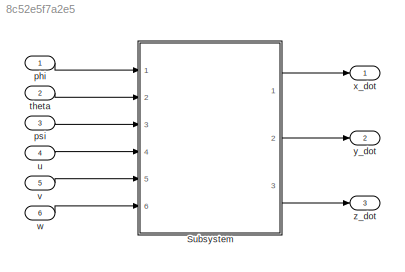
MODEL slx_8c52e5f7a2e5
KIND model
CONFIG AbsTol = auto
CONFIG EnableMultiTasking = off
CONFIG FixedStep = auto
CONFIG MaxStep = auto
CONFIG MinStep = auto
CONFIG RelTol = 1e-3
CONFIG SampleTimeConstraint = Unconstrained
CONFIG Solver = VariableStepAuto
CONFIG SolverName = VariableStepAuto
CONFIG StartTime = 0.0
CONFIG StopTime = 10.0
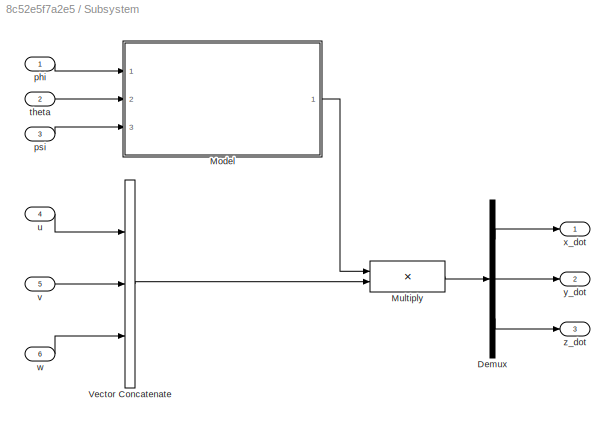
BLOCK [SubSystem] Subsystem
  Ports = [6, 3]
  RequestExecContextInheritance = off
BLOCK [Demux] Subsystem/Demux
  DisplayOption = bar
  Outputs = 3
  Ports = [1, 3]
BLOCK [ModelReference] Subsystem/Model
  ModelNameDialog = Linear_Transformation_Matrix.slx
  ModelReferenceVersion = 1.3
  Ports = [3, 1]
BLOCK [Product] Subsystem/Multiply
  InputSameDT = off
  Multiplication = Matrix(*)
  OutDataTypeStr = Inherit: Inherit via internal rule
  Ports = [2, 1]
  RndMeth = Floor
  SaturateOnIntegerOverflow = off
BLOCK [Concatenate] Subsystem/Vector Concatenate
  NumInputs = 3
  Ports = [3, 1]
BLOCK [Inport] Subsystem/phi
  IconDisplay = Port number
BLOCK [Inport] Subsystem/psi
  IconDisplay = Port number
  Port = 3
BLOCK [Inport] Subsystem/theta
  IconDisplay = Port number
  Port = 2
BLOCK [Inport] Subsystem/u
  IconDisplay = Port number
  Port = 4
BLOCK [Inport] Subsystem/v
  IconDisplay = Port number
  Port = 5
BLOCK [Inport] Subsystem/w
  IconDisplay = Port number
  Port = 6
BLOCK [Outport] Subsystem/x_dot
  IconDisplay = Port number
BLOCK [Outport] Subsystem/y_dot
  IconDisplay = Port number
  Port = 2
BLOCK [Outport] Subsystem/z_dot
  IconDisplay = Port number
  Port = 3
BLOCK [Inport] phi
  IconDisplay = Port number
BLOCK [Inport] psi
  IconDisplay = Port number
  Port = 3
BLOCK [Inport] theta
  IconDisplay = Port number
  Port = 2
BLOCK [Inport] u
  IconDisplay = Port number
  Port = 4
BLOCK [Inport] v
  IconDisplay = Port number
  Port = 5
BLOCK [Inport] w
  IconDisplay = Port number
  Port = 6
BLOCK [Outport] x_dot
  IconDisplay = Port number
BLOCK [Outport] y_dot
  IconDisplay = Port number
  Port = 2
BLOCK [Outport] z_dot
  IconDisplay = Port number
  Port = 3
LINE Subsystem/Demux:1 -> Subsystem/x_dot:1
LINE Subsystem/Demux:2 -> Subsystem/y_dot:1
LINE Subsystem/Demux:3 -> Subsystem/z_dot:1
LINE Subsystem/Model:1 -> Subsystem/Multiply:1
LINE Subsystem/Multiply:1 -> Subsystem/Demux:1
LINE Subsystem/Vector Concatenate:1 -> Subsystem/Multiply:2
LINE Subsystem/phi:1 -> Subsystem/Model:1
LINE Subsystem/psi:1 -> Subsystem/Model:3
LINE Subsystem/theta:1 -> Subsystem/Model:2
LINE Subsystem/u:1 -> Subsystem/Vector Concatenate:1
LINE Subsystem/v:1 -> Subsystem/Vector Concatenate:2
LINE Subsystem/w:1 -> Subsystem/Vector Concatenate:3
LINE Subsystem:1 -> x_dot:1
LINE Subsystem:2 -> y_dot:1
LINE Subsystem:3 -> z_dot:1
LINE phi:1 -> Subsystem:1
LINE psi:1 -> Subsystem:3
LINE theta:1 -> Subsystem:2
LINE u:1 -> Subsystem:4
LINE v:1 -> Subsystem:5
LINE w:1 -> Subsystem:6
